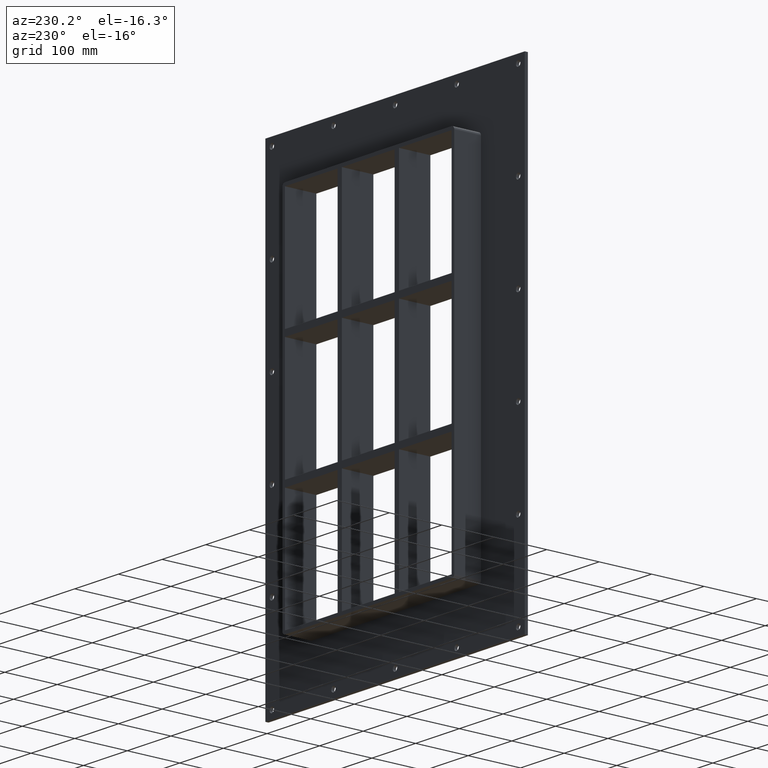
[diagram: clean part render]
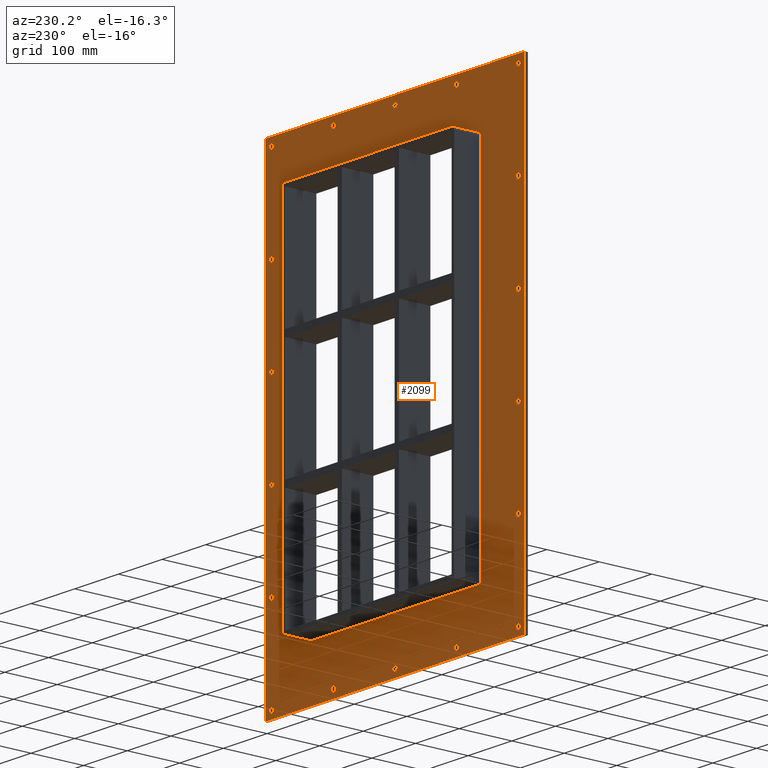
[diagram: same view with one face highlighted and labeled with its STEP entity id]
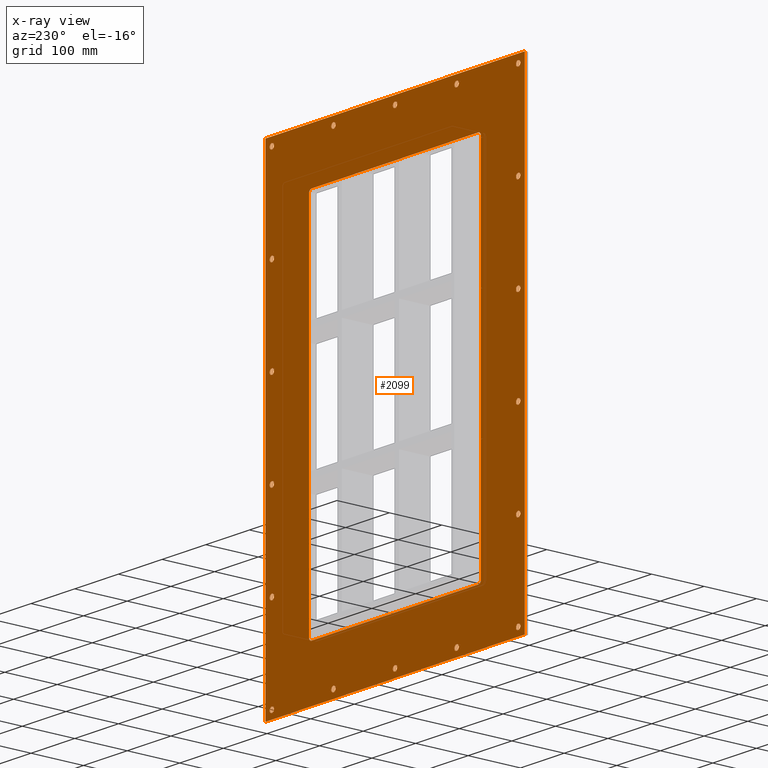
[diagram: x-ray of the same camera — body ghosted, the highlighted face saturated]
A machine part, auxiliary view. The second image highlights one B-rep face of the part: STEP entity #2099.
The next image is the same camera in x-ray: the body ghosted, the highlighted face saturated — about 0% of this face is hidden behind the body in this view.
In plain terms, the highlighted planar face has unit normal (0, 1, 0).
Its self-contained STEP definition (entity closure, byte-faithful):
#73=CARTESIAN_POINT('',(-286.75000000000017,5.999999999999943,-430.0));
#74=VERTEX_POINT('',#73);
#75=CARTESIAN_POINT('',(-281.75000000000017,5.999999999999943,-430.0));
#76=DIRECTION('',(0.0,-1.0,0.0));
#77=DIRECTION('',(1.0,0.0,0.0));
#78=AXIS2_PLACEMENT_3D('',#75,#76,#77);
#79=CIRCLE('',#78,5.0);
#80=EDGE_CURVE('',#74,#74,#79,.T.);
#101=CARTESIAN_POINT('',(276.84999999999991,5.999999999999943,-257.99999999999994));
#102=VERTEX_POINT('',#101);
#103=CARTESIAN_POINT('',(281.84999999999991,5.999999999999943,-257.99999999999994));
#104=DIRECTION('',(0.0,-1.0,0.0));
#105=DIRECTION('',(1.0,0.0,0.0));
#106=AXIS2_PLACEMENT_3D('',#103,#104,#105);
#107=CIRCLE('',#106,5.0);
#108=EDGE_CURVE('',#102,#102,#107,.T.);
#129=CARTESIAN_POINT('',(-286.75000000000017,5.999999999999943,-257.99999999999994));
#130=VERTEX_POINT('',#129);
#131=CARTESIAN_POINT('',(-281.75000000000017,5.999999999999943,-257.99999999999994));
#132=DIRECTION('',(0.0,-1.0,0.0));
#133=DIRECTION('',(1.0,0.0,0.0));
#134=AXIS2_PLACEMENT_3D('',#131,#132,#133);
#135=CIRCLE('',#134,5.0);
#136=EDGE_CURVE('',#130,#130,#135,.T.);
#157=CARTESIAN_POINT('',(276.84999999999991,5.999999999999943,-85.999999999999915));
#158=VERTEX_POINT('',#157);
#159=CARTESIAN_POINT('',(281.84999999999991,5.999999999999943,-85.999999999999915));
#160=DIRECTION('',(0.0,-1.0,0.0));
#161=DIRECTION('',(1.0,0.0,0.0));
#162=AXIS2_PLACEMENT_3D('',#159,#160,#161);
#163=CIRCLE('',#162,5.0);
#164=EDGE_CURVE('',#158,#158,#163,.T.);
#185=CARTESIAN_POINT('',(-286.75000000000017,5.999999999999943,-85.999999999999915));
#186=VERTEX_POINT('',#185);
#187=CARTESIAN_POINT('',(-281.75000000000017,5.999999999999943,-85.999999999999915));
#188=DIRECTION('',(0.0,-1.0,0.0));
#189=DIRECTION('',(1.0,0.0,0.0));
#190=AXIS2_PLACEMENT_3D('',#187,#188,#189);
#191=CIRCLE('',#190,5.0);
#192=EDGE_CURVE('',#186,#186,#191,.T.);
#213=CARTESIAN_POINT('',(276.84999999999991,5.999999999999943,86.000000000000014));
#214=VERTEX_POINT('',#213);
#215=CARTESIAN_POINT('',(281.84999999999991,5.999999999999943,86.000000000000014));
#216=DIRECTION('',(0.0,-1.0,0.0));
#217=DIRECTION('',(1.0,0.0,0.0));
#218=AXIS2_PLACEMENT_3D('',#215,#216,#217);
#219=CIRCLE('',#218,5.0);
#220=EDGE_CURVE('',#214,#214,#219,.T.);
#241=CARTESIAN_POINT('',(-286.75000000000017,5.999999999999943,86.000000000000014));
#242=VERTEX_POINT('',#241);
#243=CARTESIAN_POINT('',(-281.75000000000017,5.999999999999943,86.000000000000014));
#244=DIRECTION('',(0.0,-1.0,0.0));
#245=DIRECTION('',(1.0,0.0,0.0));
#246=AXIS2_PLACEMENT_3D('',#243,#244,#245);
#247=CIRCLE('',#246,5.0);
#248=EDGE_CURVE('',#242,#242,#247,.T.);
#269=CARTESIAN_POINT('',(276.84999999999991,5.999999999999943,258.0));
#270=VERTEX_POINT('',#269);
#271=CARTESIAN_POINT('',(281.84999999999991,5.999999999999943,258.0));
#272=DIRECTION('',(0.0,-1.0,0.0));
#273=DIRECTION('',(1.0,0.0,0.0));
#274=AXIS2_PLACEMENT_3D('',#271,#272,#273);
#275=CIRCLE('',#274,5.0);
#276=EDGE_CURVE('',#270,#270,#275,.T.);
#297=CARTESIAN_POINT('',(-286.75000000000017,5.999999999999943,258.0));
#298=VERTEX_POINT('',#297);
#299=CARTESIAN_POINT('',(-281.75000000000017,5.999999999999943,258.0));
#300=DIRECTION('',(0.0,-1.0,0.0));
#301=DIRECTION('',(1.0,0.0,0.0));
#302=AXIS2_PLACEMENT_3D('',#299,#300,#301);
#303=CIRCLE('',#302,5.0);
#304=EDGE_CURVE('',#298,#298,#303,.T.);
#325=CARTESIAN_POINT('',(-145.85000000000014,5.999999999999943,430.0));
#326=VERTEX_POINT('',#325);
#327=CARTESIAN_POINT('',(-140.85000000000014,5.999999999999943,430.0));
#328=DIRECTION('',(0.0,-1.0,0.0));
#329=DIRECTION('',(1.0,0.0,0.0));
#330=AXIS2_PLACEMENT_3D('',#327,#328,#329);
#331=CIRCLE('',#330,5.0);
#332=EDGE_CURVE('',#326,#326,#331,.T.);
#353=CARTESIAN_POINT('',(-145.85000000000014,5.999999999999943,-430.0));
#354=VERTEX_POINT('',#353);
#355=CARTESIAN_POINT('',(-140.85000000000014,5.999999999999943,-430.0));
#356=DIRECTION('',(0.0,-1.0,0.0));
#357=DIRECTION('',(1.0,0.0,0.0));
#358=AXIS2_PLACEMENT_3D('',#355,#356,#357);
#359=CIRCLE('',#358,5.0);
#360=EDGE_CURVE('',#354,#354,#359,.T.);
#381=CARTESIAN_POINT('',(-4.950000000000152,5.999999999999943,430.0));
#382=VERTEX_POINT('',#381);
#383=CARTESIAN_POINT('',(0.049999999999848,5.999999999999943,430.0));
#384=DIRECTION('',(0.0,-1.0,0.0));
#385=DIRECTION('',(1.0,0.0,0.0));
#386=AXIS2_PLACEMENT_3D('',#383,#384,#385);
#387=CIRCLE('',#386,5.0);
#388=EDGE_CURVE('',#382,#382,#387,.T.);
#409=CARTESIAN_POINT('',(-4.950000000000152,5.999999999999943,-430.0));
#410=VERTEX_POINT('',#409);
#411=CARTESIAN_POINT('',(0.049999999999848,5.999999999999943,-430.0));
#412=DIRECTION('',(0.0,-1.0,0.0));
#413=DIRECTION('',(1.0,0.0,0.0));
#414=AXIS2_PLACEMENT_3D('',#411,#412,#413);
#415=CIRCLE('',#414,5.0);
#416=EDGE_CURVE('',#410,#410,#415,.T.);
#437=CARTESIAN_POINT('',(135.94999999999987,5.999999999999943,430.0));
#438=VERTEX_POINT('',#437);
#439=CARTESIAN_POINT('',(140.94999999999987,5.999999999999943,430.0));
#440=DIRECTION('',(0.0,-1.0,0.0));
#441=DIRECTION('',(1.0,0.0,0.0));
#442=AXIS2_PLACEMENT_3D('',#439,#440,#441);
#443=CIRCLE('',#442,5.0);
#444=EDGE_CURVE('',#438,#438,#443,.T.);
#465=CARTESIAN_POINT('',(135.94999999999987,5.999999999999943,-430.0));
#466=VERTEX_POINT('',#465);
#467=CARTESIAN_POINT('',(140.94999999999987,5.999999999999943,-430.0));
#468=DIRECTION('',(0.0,-1.0,0.0));
#469=DIRECTION('',(1.0,0.0,0.0));
#470=AXIS2_PLACEMENT_3D('',#467,#468,#469);
#471=CIRCLE('',#470,5.0);
#472=EDGE_CURVE('',#466,#466,#471,.T.);
#493=CARTESIAN_POINT('',(276.84999999999991,5.999999999999943,-430.0));
#494=VERTEX_POINT('',#493);
#495=CARTESIAN_POINT('',(281.84999999999991,5.999999999999943,-430.0));
#496=DIRECTION('',(0.0,-1.0,0.0));
#497=DIRECTION('',(1.0,0.0,0.0));
#498=AXIS2_PLACEMENT_3D('',#495,#496,#497);
#499=CIRCLE('',#498,5.0);
#500=EDGE_CURVE('',#494,#494,#499,.T.);
#521=CARTESIAN_POINT('',(-286.75000000000017,5.999999999999943,430.0));
#522=VERTEX_POINT('',#521);
#523=CARTESIAN_POINT('',(-281.75000000000017,5.999999999999943,430.0));
#524=DIRECTION('',(0.0,-1.0,0.0));
#525=DIRECTION('',(1.0,0.0,0.0));
#526=AXIS2_PLACEMENT_3D('',#523,#524,#525);
#527=CIRCLE('',#526,5.0);
#528=EDGE_CURVE('',#522,#522,#527,.T.);
#549=CARTESIAN_POINT('',(276.84999999999991,5.999999999999943,430.0));
#550=VERTEX_POINT('',#549);
#551=CARTESIAN_POINT('',(281.84999999999991,5.999999999999943,430.0));
#552=DIRECTION('',(0.0,-1.0,0.0));
#553=DIRECTION('',(1.0,0.0,0.0));
#554=AXIS2_PLACEMENT_3D('',#551,#552,#553);
#555=CIRCLE('',#554,5.0);
#556=EDGE_CURVE('',#550,#550,#555,.T.);
#1936=CARTESIAN_POINT('',(-4.598052E-014,6.000000000000001,3.448539E-014));
#1937=DIRECTION('',(0.0,1.0,0.0));
#1938=DIRECTION('',(0.0,0.0,1.0));
#1939=AXIS2_PLACEMENT_3D('',#1936,#1937,#1938);
#1940=PLANE('',#1939);
#1941=CARTESIAN_POINT('',(-296.75000000000011,6.000000000000001,445.00000000000006));
#1942=VERTEX_POINT('',#1941);
#1943=CARTESIAN_POINT('',(296.75000000000006,6.000000000000001,445.00000000000006));
#1944=VERTEX_POINT('',#1943);
#1945=CARTESIAN_POINT('',(-296.75000000000011,6.000000000000001,445.00000000000006));
#1946=DIRECTION('',(1.0,0.0,0.0));
#1947=VECTOR('',#1946,593.50000000000011);
#1948=LINE('',#1945,#1947);
#1949=EDGE_CURVE('',#1942,#1944,#1948,.T.);
#1950=ORIENTED_EDGE('',*,*,#1949,.T.);
#1951=CARTESIAN_POINT('',(296.75000000000006,6.000000000000001,-444.99999999999994));
#1952=VERTEX_POINT('',#1951);
#1953=CARTESIAN_POINT('',(296.75000000000006,6.000000000000001,445.00000000000006));
#1954=DIRECTION('',(0.0,0.0,-1.0));
#1955=VECTOR('',#1954,890.0);
#1956=LINE('',#1953,#1955);
#1957=EDGE_CURVE('',#1944,#1952,#1956,.T.);
#1958=ORIENTED_EDGE('',*,*,#1957,.T.);
#1959=CARTESIAN_POINT('',(-296.75000000000011,6.000000000000001,-444.99999999999994));
#1960=VERTEX_POINT('',#1959);
#1961=CARTESIAN_POINT('',(296.75000000000006,6.000000000000001,-445.0));
#1962=DIRECTION('',(-1.0,0.0,0.0));
#1963=VECTOR('',#1962,593.50000000000011);
#1964=LINE('',#1961,#1963);
#1965=EDGE_CURVE('',#1952,#1960,#1964,.T.);
#1966=ORIENTED_EDGE('',*,*,#1965,.T.);
#1967=CARTESIAN_POINT('',(-296.75000000000011,6.000000000000001,-445.0));
#1968=DIRECTION('',(0.0,0.0,1.0));
#1969=VECTOR('',#1968,890.0);
#1970=LINE('',#1967,#1969);
#1971=EDGE_CURVE('',#1960,#1942,#1970,.T.);
#1972=ORIENTED_EDGE('',*,*,#1971,.T.);
#1973=EDGE_LOOP('',(#1950,#1958,#1966,#1972));
#1974=FACE_OUTER_BOUND('',#1973,.T.);
#1975=ORIENTED_EDGE('',*,*,#80,.T.);
#1976=EDGE_LOOP('',(#1975));
#1977=FACE_BOUND('',#1976,.T.);
#1978=ORIENTED_EDGE('',*,*,#108,.T.);
#1979=EDGE_LOOP('',(#1978));
#1980=FACE_BOUND('',#1979,.T.);
#1981=ORIENTED_EDGE('',*,*,#136,.T.);
#1982=EDGE_LOOP('',(#1981));
#1983=FACE_BOUND('',#1982,.T.);
#1984=ORIENTED_EDGE('',*,*,#164,.T.);
#1985=EDGE_LOOP('',(#1984));
#1986=FACE_BOUND('',#1985,.T.);
#1987=ORIENTED_EDGE('',*,*,#192,.T.);
#1988=EDGE_LOOP('',(#1987));
#1989=FACE_BOUND('',#1988,.T.);
#1990=ORIENTED_EDGE('',*,*,#220,.T.);
#1991=EDGE_LOOP('',(#1990));
#1992=FACE_BOUND('',#1991,.T.);
#1993=ORIENTED_EDGE('',*,*,#248,.T.);
#1994=EDGE_LOOP('',(#1993));
#1995=FACE_BOUND('',#1994,.T.);
#1996=ORIENTED_EDGE('',*,*,#276,.T.);
#1997=EDGE_LOOP('',(#1996));
#1998=FACE_BOUND('',#1997,.T.);
#1999=ORIENTED_EDGE('',*,*,#304,.T.);
#2000=EDGE_LOOP('',(#1999));
#2001=FACE_BOUND('',#2000,.T.);
#2002=ORIENTED_EDGE('',*,*,#332,.T.);
#2003=EDGE_LOOP('',(#2002));
#2004=FACE_BOUND('',#2003,.T.);
#2005=ORIENTED_EDGE('',*,*,#360,.T.);
#2006=EDGE_LOOP('',(#2005));
#2007=FACE_BOUND('',#2006,.T.);
#2008=ORIENTED_EDGE('',*,*,#388,.T.);
#2009=EDGE_LOOP('',(#2008));
#2010=FACE_BOUND('',#2009,.T.);
#2011=ORIENTED_EDGE('',*,*,#416,.T.);
#2012=EDGE_LOOP('',(#2011));
#2013=FACE_BOUND('',#2012,.T.);
#2014=ORIENTED_EDGE('',*,*,#444,.T.);
#2015=EDGE_LOOP('',(#2014));
#2016=FACE_BOUND('',#2015,.T.);
#2017=ORIENTED_EDGE('',*,*,#472,.T.);
#2018=EDGE_LOOP('',(#2017));
#2019=FACE_BOUND('',#2018,.T.);
#2020=ORIENTED_EDGE('',*,*,#500,.T.);
#2021=EDGE_LOOP('',(#2020));
#2022=FACE_BOUND('',#2021,.T.);
#2023=ORIENTED_EDGE('',*,*,#528,.T.);
#2024=EDGE_LOOP('',(#2023));
#2025=FACE_BOUND('',#2024,.T.);
#2026=ORIENTED_EDGE('',*,*,#556,.T.);
#2027=EDGE_LOOP('',(#2026));
#2028=FACE_BOUND('',#2027,.T.);
#2029=CARTESIAN_POINT('',(-190.75000000000006,6.000000000000001,-345.00000000000006));
#2030=VERTEX_POINT('',#2029);
#2031=CARTESIAN_POINT('',(-196.75000000000009,6.000000000000001,-339.00000000000006));
#2032=VERTEX_POINT('',#2031);
#2033=CARTESIAN_POINT('',(-190.75000000000006,6.000000000000001,-339.00000000000006));
#2034=DIRECTION('',(0.0,1.0,0.0));
#2035=DIRECTION('',(-0.707106781186552,0.0,-0.707106781186543));
#2036=AXIS2_PLACEMENT_3D('',#2033,#2034,#2035);
#2037=CIRCLE('',#2036,6.000000000000001);
#2038=EDGE_CURVE('',#2030,#2032,#2037,.T.);
#2039=ORIENTED_EDGE('',*,*,#2038,.F.);
#2040=CARTESIAN_POINT('',(190.75,6.000000000000001,-345.00000000000006));
#2041=VERTEX_POINT('',#2040);
#2042=CARTESIAN_POINT('',(190.75,6.000000000000001,-345.00000000000006));
#2043=DIRECTION('',(-1.0,0.0,0.0));
#2044=VECTOR('',#2043,381.50000000000006);
#2045=LINE('',#2042,#2044);
#2046=EDGE_CURVE('',#2041,#2030,#2045,.T.);
#2047=ORIENTED_EDGE('',*,*,#2046,.F.);
#2048=CARTESIAN_POINT('',(196.75,6.000000000000001,-339.00000000000006));
#2049=VERTEX_POINT('',#2048);
#2050=CARTESIAN_POINT('',(190.75,6.000000000000001,-339.00000000000006));
#2051=DIRECTION('',(0.0,1.0,0.0));
#2052=DIRECTION('',(0.707106781186552,0.0,-0.707106781186543));
#2053=AXIS2_PLACEMENT_3D('',#2050,#2051,#2052);
#2054=CIRCLE('',#2053,6.000000000000001);
#2055=EDGE_CURVE('',#2049,#2041,#2054,.T.);
#2056=ORIENTED_EDGE('',*,*,#2055,.F.);
#2057=CARTESIAN_POINT('',(196.75,6.000000000000001,339.00000000000006));
#2058=VERTEX_POINT('',#2057);
#2059=CARTESIAN_POINT('',(196.75,6.000000000000001,339.00000000000006));
#2060=DIRECTION('',(0.0,0.0,-1.0));
#2061=VECTOR('',#2060,678.0);
#2062=LINE('',#2059,#2061);
#2063=EDGE_CURVE('',#2058,#2049,#2062,.T.);
#2064=ORIENTED_EDGE('',*,*,#2063,.F.);
#2065=CARTESIAN_POINT('',(190.75,6.000000000000001,345.00000000000006));
#2066=VERTEX_POINT('',#2065);
#2067=CARTESIAN_POINT('',(190.75,6.000000000000001,339.00000000000006));
#2068=DIRECTION('',(0.0,1.0,0.0));
#2069=DIRECTION('',(0.707106781186552,0.0,0.707106781186543));
#2070=AXIS2_PLACEMENT_3D('',#2067,#2068,#2069);
#2071=CIRCLE('',#2070,6.000000000000001);
#2072=EDGE_CURVE('',#2066,#2058,#2071,.T.);
#2073=ORIENTED_EDGE('',*,*,#2072,.F.);
#2074=CARTESIAN_POINT('',(-190.75000000000006,6.000000000000001,345.00000000000006));
#2075=VERTEX_POINT('',#2074);
#2076=CARTESIAN_POINT('',(-190.75000000000006,6.000000000000001,345.00000000000006));
#2077=DIRECTION('',(1.0,0.0,0.0));
#2078=VECTOR('',#2077,381.50000000000006);
#2079=LINE('',#2076,#2078);
#2080=EDGE_CURVE('',#2075,#2066,#2079,.T.);
#2081=ORIENTED_EDGE('',*,*,#2080,.F.);
#2082=CARTESIAN_POINT('',(-196.75000000000009,6.000000000000001,339.00000000000006));
#2083=VERTEX_POINT('',#2082);
#2084=CARTESIAN_POINT('',(-190.75000000000006,6.000000000000001,339.00000000000006));
#2085=DIRECTION('',(0.0,1.0,0.0));
#2086=DIRECTION('',(-0.707106781186552,0.0,0.707106781186543));
#2087=AXIS2_PLACEMENT_3D('',#2084,#2085,#2086);
#2088=CIRCLE('',#2087,6.000000000000001);
#2089=EDGE_CURVE('',#2083,#2075,#2088,.T.);
#2090=ORIENTED_EDGE('',*,*,#2089,.F.);
#2091=CARTESIAN_POINT('',(-196.75000000000009,6.000000000000001,-339.00000000000006));
#2092=DIRECTION('',(0.0,0.0,1.0));
#2093=VECTOR('',#2092,678.0);
#2094=LINE('',#2091,#2093);
#2095=EDGE_CURVE('',#2032,#2083,#2094,.T.);
#2096=ORIENTED_EDGE('',*,*,#2095,.F.);
#2097=EDGE_LOOP('',(#2039,#2047,#2056,#2064,#2073,#2081,#2090,#2096));
#2098=FACE_BOUND('',#2097,.T.);
#2099=ADVANCED_FACE('',(#1974,#1977,#1980,#1983,#1986,#1989,#1992,#1995,#1998,#2001,#2004,#2007,#2010,#2013,#2016,#2019,#2022,#2025,#2028,#2098),#1940,.T.);